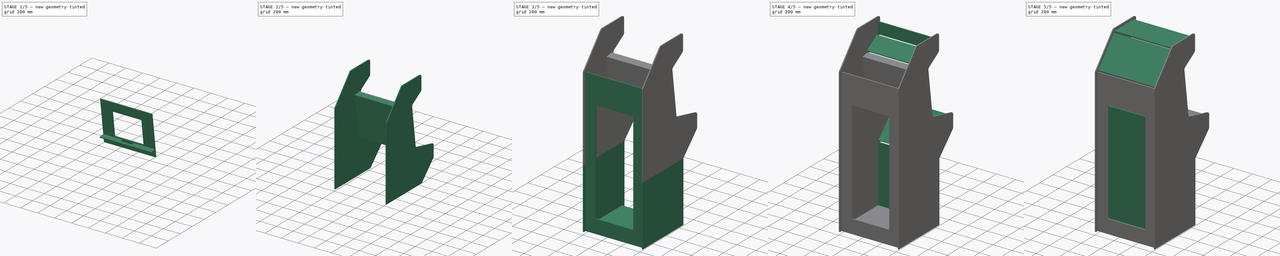
[diagram: build sequence overview — one tinted view per stage of 5, left to right]
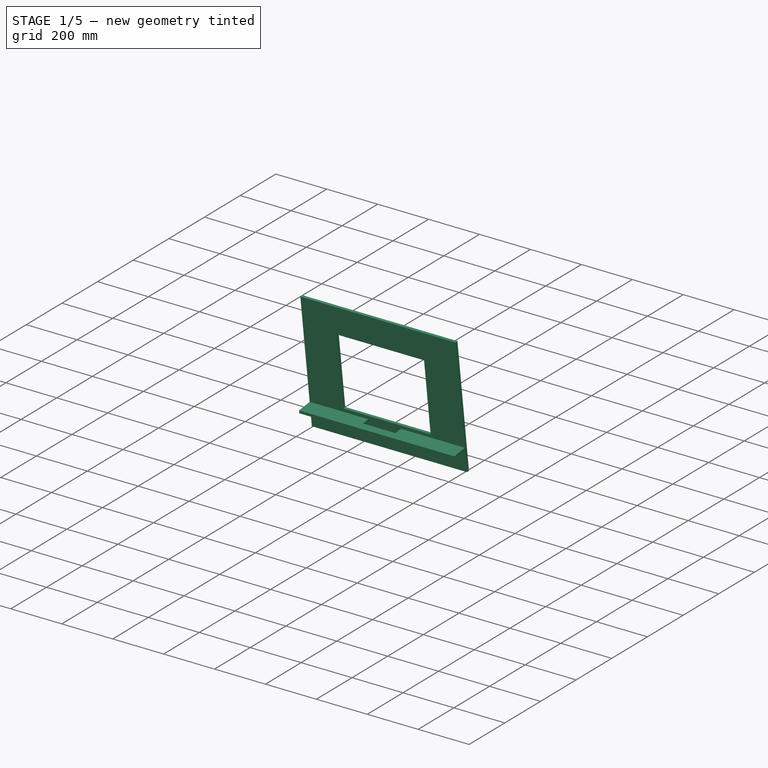
[diagram: stage 1 of 5 — iso view after this stage's code; geometry added in this stage tinted green]
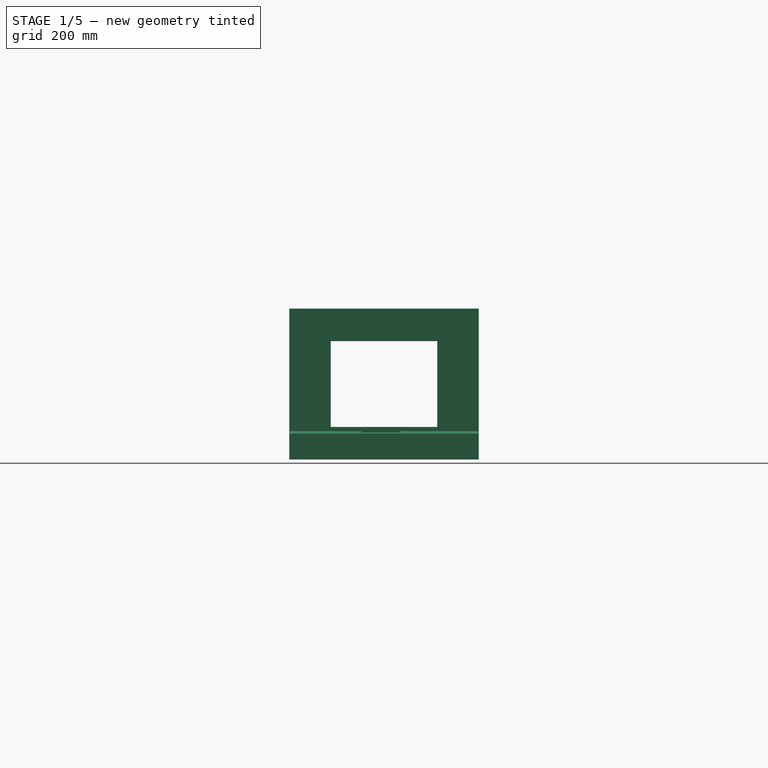
[diagram: stage 1 of 5 — front view after this stage's code; geometry added in this stage tinted green]
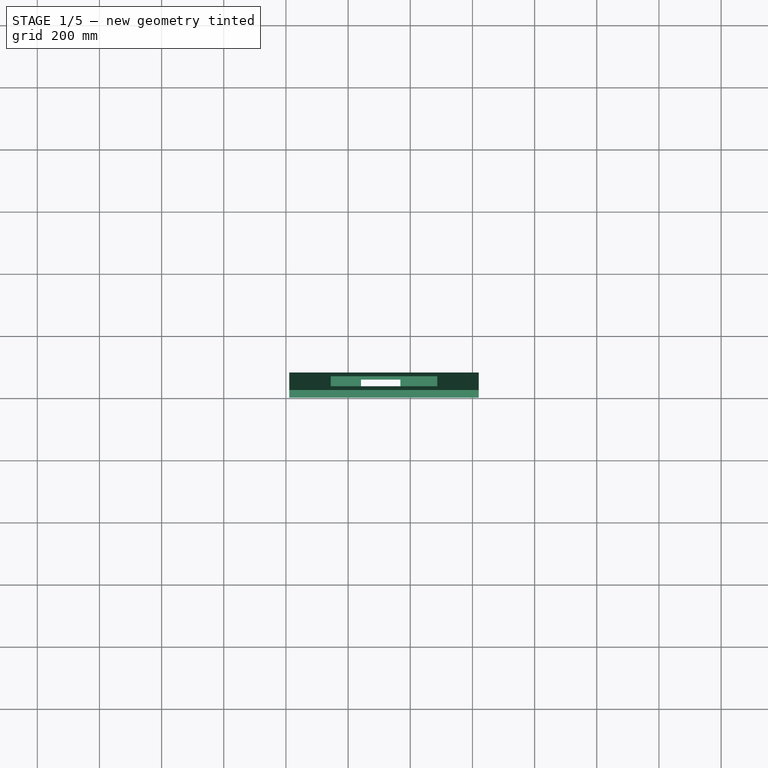
[diagram: stage 1 of 5 — top view after this stage's code; geometry added in this stage tinted green]
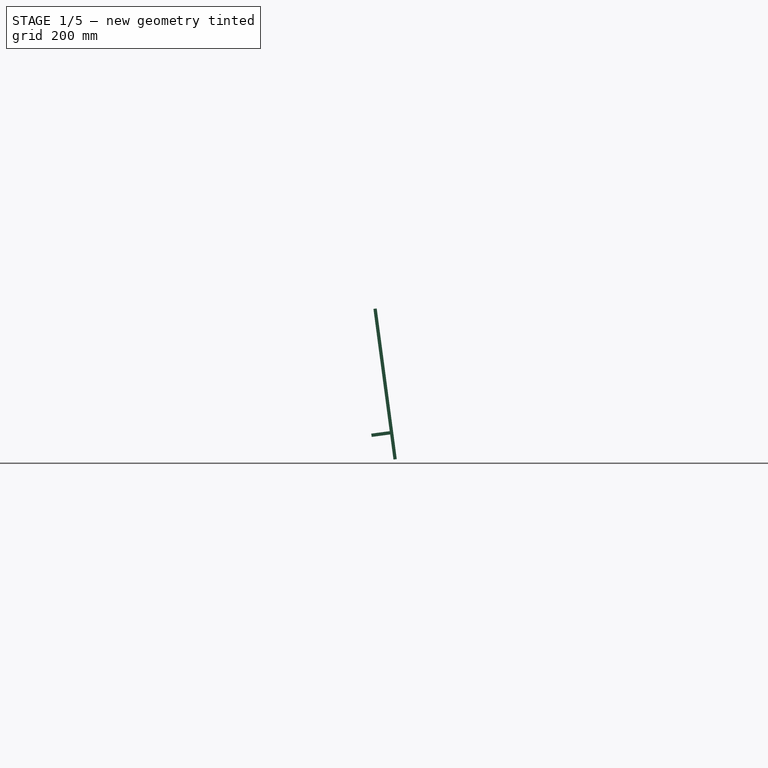
[diagram: stage 1 of 5 — right view after this stage's code; geometry added in this stage tinted green]
FCSTD DOCUMENT  (FreeCAD 0.16RUnknown)
Label: PressFitArcade
License: All rights reserved
LicenseURL: http://en.wikipedia.org/wiki/All_rights_reserved
objects: Part::Box×19, Part::Feature×18, Part::Cut×4, Sketcher::SketchObject×3, PartDesign::Pad×3, App::DocumentObjectGroup×3, Spreadsheet::Sheet×2, PartDesign::Fillet×2, Part::FeaturePython×1, Part::Cylinder×1
note: 54 computed .brp shape members not serialized (recipe doc carries the construction recipe); baked Part::Feature solids carry a one-line shape summary decoded from their .brp

FEATURE [Sketcher::SketchObject] Sketch003
  Placement = pos=(10.668,496.226,1065.7) rot=(1,0,0;1.70325rad)
  expr: Constraints[10] = Spreadsheet.side_g
  expr: Constraints[9] = Spreadsheet.width
  sketch-geometry (4):
    g0: LineSegment StartX=0 StartY=0 StartZ=0 EndX=609.6 EndY=0 EndZ=0
    g1: LineSegment StartX=609.6 StartY=0 StartZ=0 EndX=609.6 EndY=488.95 EndZ=0
    g2: LineSegment StartX=609.6 StartY=488.95 StartZ=0 EndX=0 EndY=488.95 EndZ=0
    g3: LineSegment StartX=0 StartY=488.95 StartZ=0 EndX=0 EndY=0 EndZ=0
  constraints (11):
    c: Coincident(g0,g1)
    c: Coincident(g1,g2)
    c: Coincident(g2,g3)
    c: Coincident(g3,g0)
    c: Horizontal(g0)
    c: Horizontal(g2)
    c: Vertical(g1)
    c: Vertical(g3)
    c: Coincident(g0,g-1)
    c: DistanceX(g2,g2) = 609.6
    c: DistanceY(g1,g1) = 488.95
FEATURE [PartDesign::Pad] Pad003
  Length = 10.668
  Length2 = 100
  Placement = pos=(10.668,496.226,1065.7) rot=(1,0,0;1.70325rad)
  Reversed = true
  Sketch = -> Sketch003
  Type = 0
  expr: Length = Spreadsheet.thickness
FEATURE [Sketcher::SketchObject] Sketch
  Placement = pos=(144.018,482.389,1169.56) rot=(1,0,0;1.70325rad)
  sketch-geometry (4):
    g0: LineSegment StartX=0 StartY=0 StartZ=0 EndX=342.9 EndY=0 EndZ=0
    g1: LineSegment StartX=342.9 StartY=0 StartZ=0 EndX=342.9 EndY=279.4 EndZ=0
    g2: LineSegment StartX=342.9 StartY=279.4 StartZ=0 EndX=0 EndY=279.4 EndZ=0
    g3: LineSegment StartX=0 StartY=279.4 StartZ=0 EndX=0 EndY=0 EndZ=0
  constraints (11):
    c: Coincident(g0,g1)
    c: Coincident(g1,g2)
    c: Coincident(g2,g3)
    c: Coincident(g3,g0)
    c: Horizontal(g0)
    c: Horizontal(g2)
    c: Vertical(g1)
    c: Vertical(g3)
    c: Coincident(g0,g-1)
    c: DistanceX(g2,g2) = 342.9
    c: DistanceY(g1,g1) = 279.4
FEATURE [PartDesign::Pad] Pad
  Length = 10.668
  Length2 = 100
  Placement = pos=(144.018,482.389,1169.56) rot=(1,0,0;1.70325rad)
  Reversed = true
  Sketch = -> Sketch
  Type = 0
  expr: Length = Spreadsheet.thickness
FEATURE [Part::Cut] Cut002  label="Screen"
  Base = -> Pad003
  Placement = pos=(0,-23.0429,-3.07136) rot=(0,0,1;0rad)
  Tool = -> Pad
FEATURE [Part::Box] Box018  label="ScreenSupport001"
  Height = 60
  Length = 609.6
  Placement = pos=(10.668,462.432,1143.32) rot=(1,0,0;1.70325rad)
  Width = 10.668
  expr: Length = Spreadsheet.width
  expr: Width = Spreadsheet.thickness
FEATURE [Spreadsheet::Sheet] Spreadsheet001
  cells = A1=Variable; B1=inches; C1=mm; F1=Side; G1=inches; H1=mm; A2=height; B2=48; C2(height)==B2 * 25.4; F2=A; G2=24; H2(side_a)==G2 * 25.4; I2==H2 / 2 / 76.2; A3=length; B3=36; C3(length)==B3 * 25.4; F3=B; G3=60; H3(side_b)==G3 * 25.4; I3==int(H3 / 3 / 76.2); A4=width; B4=24; C4(width)==B4 * 25.4; F4=C; G4=16; H4(side_c)==G4 * 25.4; A5=thickness; B5=0.42; C5(thickness)==B5 * 25.4; F5=D; G5=13.25; H5(side_d)==G5 * 25.4; A6=back_height; B6=36; C6(back_height)==B6 * 25.4; F6=E; G6=7; H6(side_e)==G6 * 25.4; A7=top_width; B7=24; C7(top_width)==B7 * 25.4; F7=F; G7=7.5; H7(side_f)==G7 * 25.4; F8=G; G8=19.25; H8(side_g)==G8 * 25.4; F9=H; G9=12.5; H9(side_h)==G9 * 25.4; F10=I; G10=6; H10(side_i)==G10 * 25.4; F11=J; G11=11.5; H11(side_j)==G11 * 25.4; F12=K; G12=25; H12(side_k)==G12 * 25.4
FEATURE [Part::Box] Box019  label="ScreenSupportHole"
  Height = 30
  Length = 127
  Placement = pos=(241.3,462.432,1143.32) rot=(1,0,0;1.70325rad)
  Width = 10.668
  expr: Width = Spreadsheet.thickness
FEATURE [Part::Cut] Cut003  label="ScreenBottom"
  Base = -> Box018
  Tool = -> Box019
FEATURE [App::DocumentObjectGroup] Group002  label="ScreenSupport"
  Group = -> [Box011,Cut003,Cut002]
FEATURE [Part::Feature] SideK001_tab
  shape: bbox 10.67 x 609.6 x 635 mm, 50 faces (baked)
FEATURE [Part::Feature] SideK002_tab
  shape: bbox 10.67 x 609.6 x 635 mm, 50 faces (baked)
FEATURE [Part::Feature] Fillet_tab
  shape: bbox 10.67 x 815.8 x 1195 mm, 100 faces (baked)
FEATURE [Part::Feature] Fillet001_tab
  shape: bbox 10.67 x 815.8 x 1195 mm, 100 faces (baked)
FEATURE [Part::Feature] SideC_tab
  shape: bbox 630.9 x 242.3 x 274.6 mm, 38 faces (baked)
FEATURE [Part::Feature] SideD_tab
  shape: bbox 630.9 x 292.1 x 10.67 mm, 38 faces (baked)
FEATURE [Part::Feature] SideE_tab
  shape: bbox 630.9 x 10.67 x 120.7 mm, 22 faces (baked)
FEATURE [Part::Feature] SideF_tab
  shape: bbox 630.9 x 156.8 x 102.6 mm, 22 faces (baked)
FEATURE [Part::Feature] SideH_tab
  shape: bbox 630.9 x 299.1 x 80.32 mm, 38 faces (baked)
FEATURE [Part::Feature] SideI_tab
  shape: bbox 630.9 x 10.67 x 108 mm, 22 faces (baked)
FEATURE [Part::Feature] SideJ_tab
  shape: bbox 630.9 x 204.8 x 205.4 mm, 38 faces (baked)
FEATURE [Part::Feature] SideK_tab
  shape: bbox 630.9 x 10.67 x 635 mm, 78 faces (baked)
FEATURE [Part::Feature] SideA_tab
  shape: bbox 630.9 x 558.8 x 10.67 mm, 102 faces (baked)
FEATURE [Part::Feature] SideB_tab
  shape: bbox 630.9 x 10.67 x 1511 mm, 102 faces (baked)
FEATURE [Part::Feature] CenterSupport_tab
  shape: bbox 630.9 x 548.1 x 10.67 mm, 79 faces (baked)
FEATURE [Part::Feature] ScreenBack_tab
  shape: bbox 630.9 x 75.15 x 486.1 mm, 62 faces (baked)
FEATURE [Part::Feature] Screen_tab
  shape: bbox 630.9 x 75.15 x 486.1 mm, 66 faces (baked)
FEATURE [Part::Feature] ScreenBottom_tab
  shape: bbox 609.6 x 82.04 x 21.32 mm, 42 faces (baked)
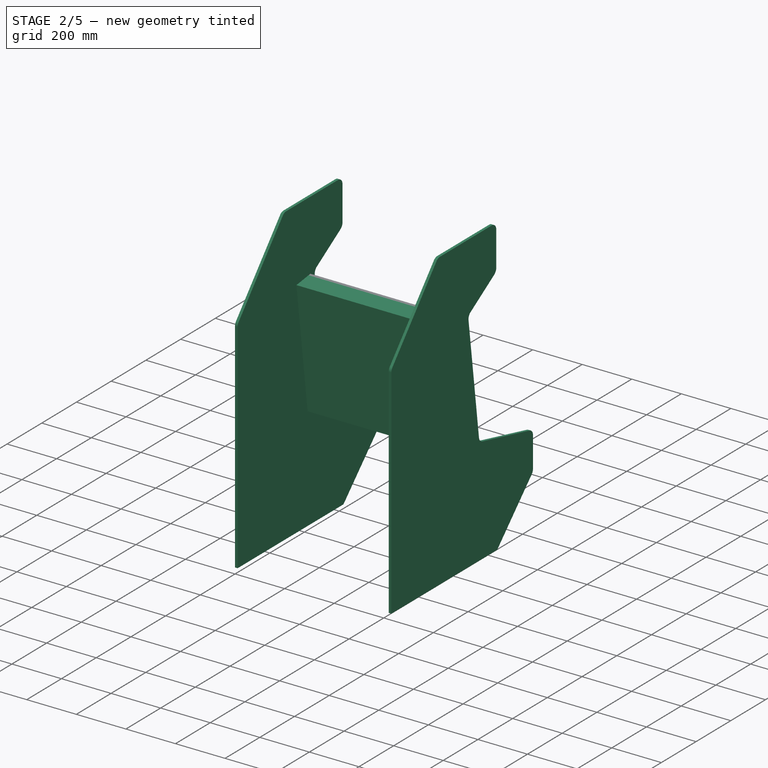
[diagram: stage 2 of 5 — iso view after this stage's code; geometry added in this stage tinted green]
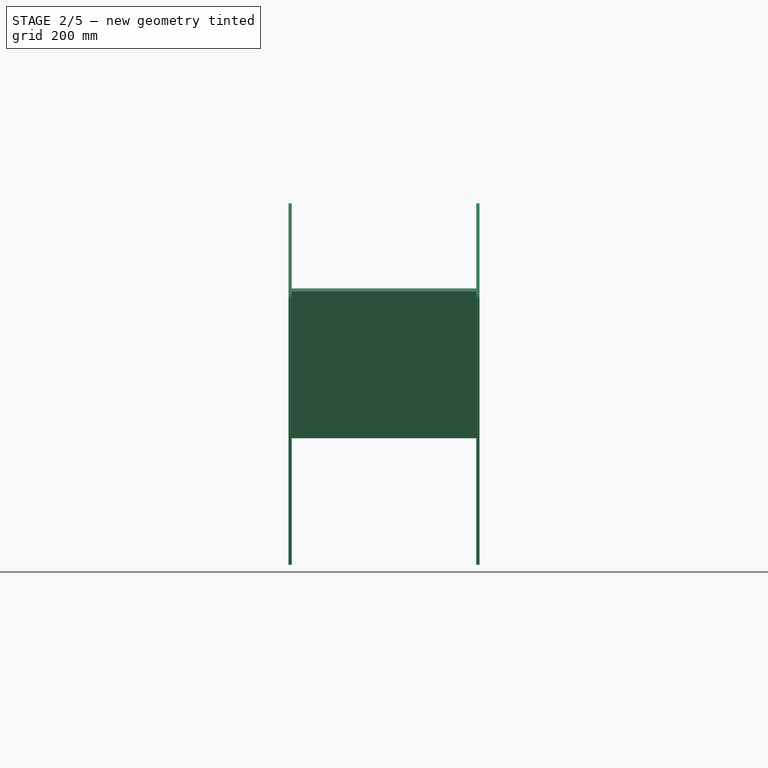
[diagram: stage 2 of 5 — front view after this stage's code; geometry added in this stage tinted green]
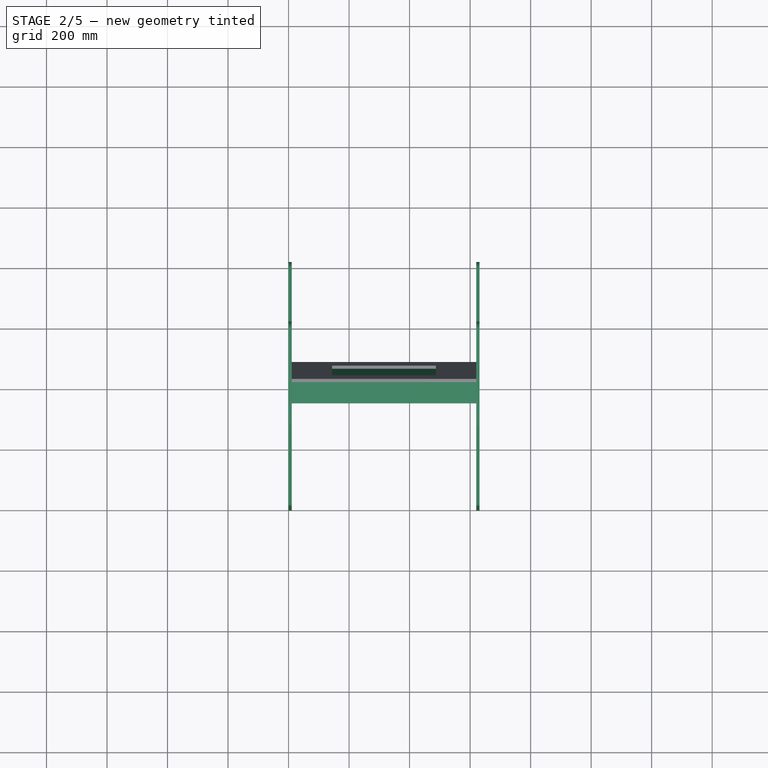
[diagram: stage 2 of 5 — top view after this stage's code; geometry added in this stage tinted green]
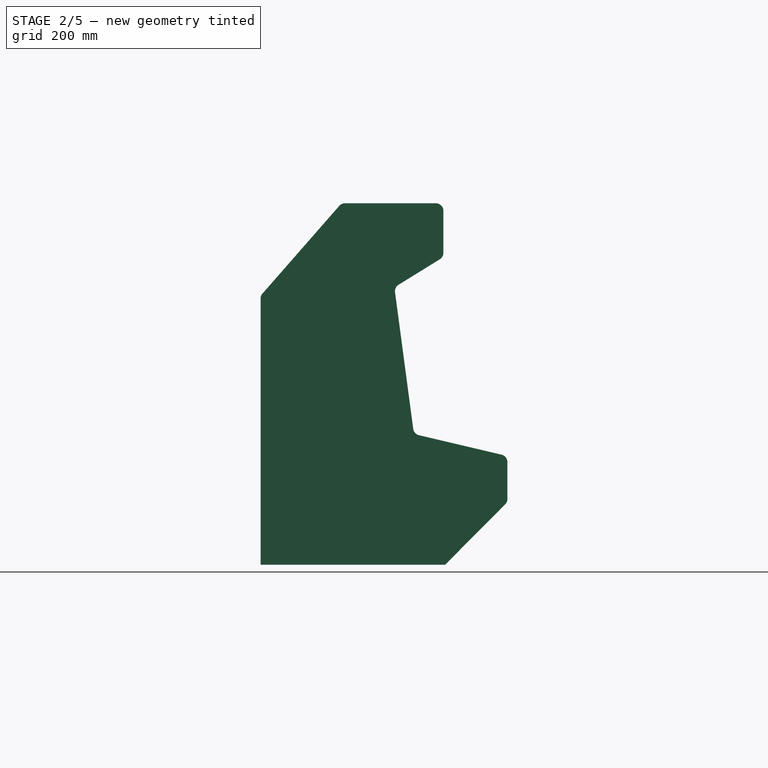
[diagram: stage 2 of 5 — right view after this stage's code; geometry added in this stage tinted green]
FEATURE [Spreadsheet::Sheet] Spreadsheet
  cells = A1=Variable; B1=inches; C1=mm; F1=Side; G1=inches; H1=mm; A2=height; B2=48; C2(height)==B2 * 25.4; F2=A; G2=24; H2(side_a)==G2 * 25.4; I2==H2 / 2 / 76.2; A3=length; B3=36; C3(length)==B3 * 25.4; F3=B; G3=60; H3(side_b)==G3 * 25.4; I3==int(H3 / 3 / 76.2); A4=width; B4=24; C4(width)==B4 * 25.4; F4=C; G4=16; H4(side_c)==G4 * 25.4; A5=thickness; B5=0.42; C5(thickness)==B5 * 25.4; F5=D; G5=13.25; H5(side_d)==G5 * 25.4; A6=back_height; B6=36; C6(back_height)==B6 * 25.4; F6=E; G6=7; H6(side_e)==G6 * 25.4; A7=top_width; B7=24; C7(top_width)==B7 * 25.4; F7=F; G7=7.5; H7(side_f)==G7 * 25.4; F8=G; G8=19.25; H8(side_g)==G8 * 25.4; F9=H; G9=12.5; H9(side_h)==G9 * 25.4; F10=I; G10=6; H10(side_i)==G10 * 25.4; F11=J; G11=11.5; H11(side_j)==G11 * 25.4; F12=K; G12=25; H12(side_k)==G12 * 25.4
FEATURE [Sketcher::SketchObject] Sketch002
  Placement = pos=(0,0,0) rot=(0.57735,0.57735,0.57735;2.0944rad)
  expr: Constraints[18] = Spreadsheet.side_f
  expr: Constraints[11] = Spreadsheet.side_e
  expr: Constraints[21] = Spreadsheet.side_j
  expr: Constraints[20] = Spreadsheet.side_h
  expr: Constraints[17] = Spreadsheet.side_c
  expr: Constraints[19] = Spreadsheet.side_g
  expr: Constraints[15] = Spreadsheet.side_d
  sketch-geometry (10):
    g0: LineSegment StartX=6.3e-11 StartY=635 StartZ=0 EndX=6.3e-11 EndY=1524 EndZ=0
    g1: LineSegment StartX=6.3e-11 StartY=1524 StartZ=0 EndX=267.697 EndY=1829.78 EndZ=0
    g2: LineSegment StartX=267.697 StartY=1829.78 StartZ=0 EndX=604.247 EndY=1829.78 EndZ=0
    g3: LineSegment StartX=604.247 StartY=1829.78 StartZ=0 EndX=604.247 EndY=1651.98 EndZ=0
    g4: LineSegment StartX=604.247 StartY=1651.98 StartZ=0 EndX=442.227 EndY=1551.78 EndZ=0
    g5: LineSegment StartX=442.227 StartY=1551.78 StartZ=0 EndX=506.8 EndY=1067.11 EndZ=0
    g6: LineSegment StartX=506.8 StartY=1067.11 StartZ=0 EndX=815.83 EndY=994.261 EndZ=0
    g7: LineSegment StartX=815.83 StartY=994.261 StartZ=0 EndX=815.83 EndY=841.861 EndZ=0
    g8: LineSegment StartX=815.83 StartY=841.861 StartZ=0 EndX=609.6 EndY=635 EndZ=0
    g9: LineSegment StartX=609.6 StartY=635 StartZ=0 EndX=6.3e-11 EndY=635 EndZ=0
  constraints (26):
    c: Vertical(g0)
    c: Coincident(g0,g1)
    c: Coincident(g2,g3)
    c: Coincident(g4,g5)
    c: Coincident(g5,g6)
    c: Coincident(g6,g7)
    c: Vertical(g7)
    c: Coincident(g7,g8)
    c: Coincident(g9,g0)
    c: Horizontal(g9)
    c: DistanceY(g7,g6) = 152.4
    c: DistanceY(g3,g2) = 177.8
    c: Vertical(g3)
    c: Coincident(g2,g1)
    c: Horizontal(g2)
    c: DistanceX(g2,g2) = 336.55
    c: Coincident(g3,g4)
    c: Distance(g1) = 406.4
    c: Distance(g4) = 190.5
    c: Distance(g5) = 488.95
    c: Distance(g6) = 317.5
    c: Distance(g8) = 292.1
    c: Angle(g0,g1) = 2.4225
    c: Angle(g5,g4) = 1.99221
    c: Angle(g3,g4) = 2.12466
    c: Coincident(g8,g9)
FEATURE [PartDesign::Pad] Pad002
  Length = 10.668
  Length2 = 100
  Placement = pos=(0,0,0) rot=(0.57735,0.57735,0.57735;2.0944rad)
  Sketch = -> Sketch002
  Type = 0
  expr: Length = Spreadsheet.thickness
FEATURE [Part::FeaturePython] Clone003  label="Clone of Pad002"  # Draft clone (typed FeaturePython)
  Objects = -> [Pad002]
  Placement = pos=(620.268,0,0) rot=(0.57735,0.57735,0.57735;2.0944rad)
  Scale = (1,1,1)
FEATURE [Part::Box] Box011  label="ScreenBack"
  Height = 488.95
  Length = 609.6
  Placement = pos=(10.668,403.133,1053.3) rot=(1,0,0;0.132452rad)
  Width = 10.668
  expr: Length = Spreadsheet.width
  expr: Width = Spreadsheet.thickness
  expr: Height = Spreadsheet.side_g
FEATURE [App::DocumentObjectGroup] Group  label="Panels"
  Group = -> [Box001,Box002,Box003,Box004,Box005,Box006,Box007,Box008,Box009,Cut001]
FEATURE [PartDesign::Fillet] Fillet
  Base = -> Clone003 [Edge23,Edge20,Edge17,Edge14,Edge11,Edge8,Edge5,Edge2]
  Placement = pos=(620.268,0,0) rot=(0.57735,0.57735,0.57735;2.0944rad)
  Radius = 25.4
FEATURE [PartDesign::Fillet] Fillet001
  Base = -> Pad002 [Edge23,Edge20,Edge17,Edge2,Edge14,Edge11,Edge8,Edge5]
  Placement = pos=(0,0,0) rot=(0.57735,0.57735,0.57735;2.0944rad)
  Radius = 25.4
FEATURE [App::DocumentObjectGroup] Group001  label="Sides"
  Group = -> [Clone003,Pad002,Box015,Box016,Fillet,Fillet001]
FEATURE [Part::Box] Box017  label="ScreenAlignment"
  Height = 488.95
  Length = 609.6
  Placement = pos=(10.668,413.709,1054.7) rot=(1,0,0;0.132453rad)
  Width = 60
  expr: Height = Spreadsheet.side_g
  expr: Length = Spreadsheet.width
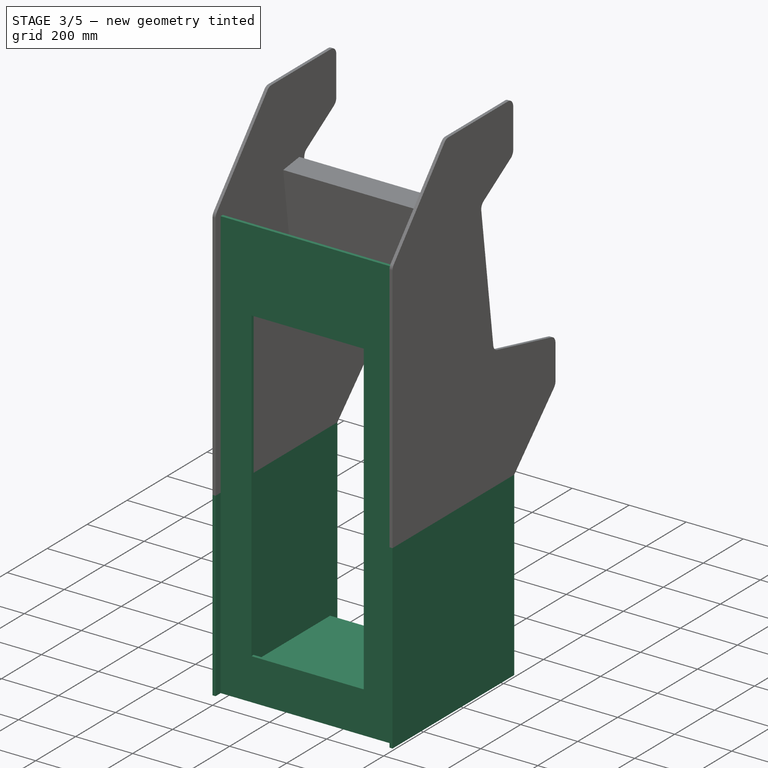
[diagram: stage 3 of 5 — iso view after this stage's code; geometry added in this stage tinted green]
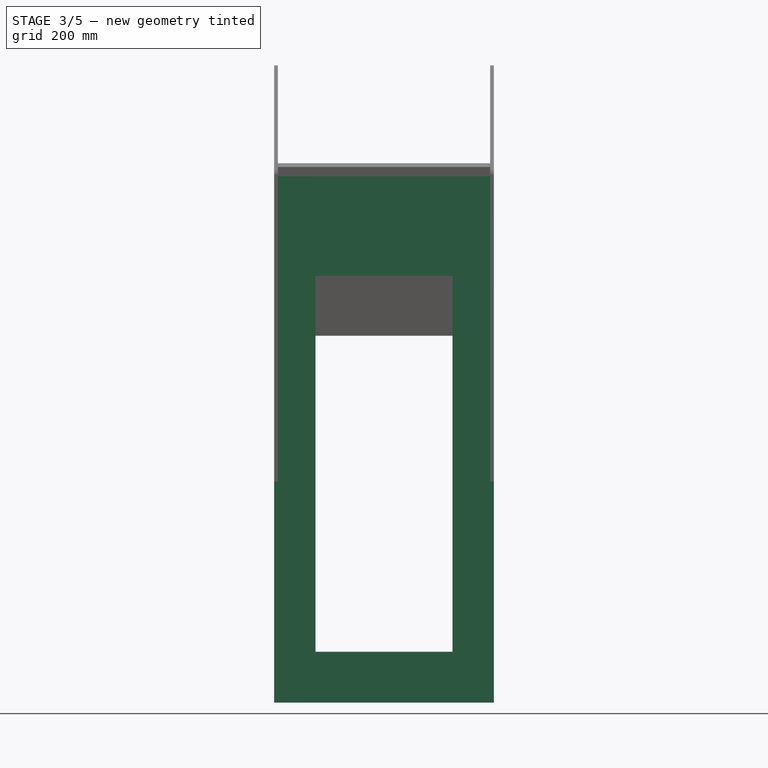
[diagram: stage 3 of 5 — front view after this stage's code; geometry added in this stage tinted green]
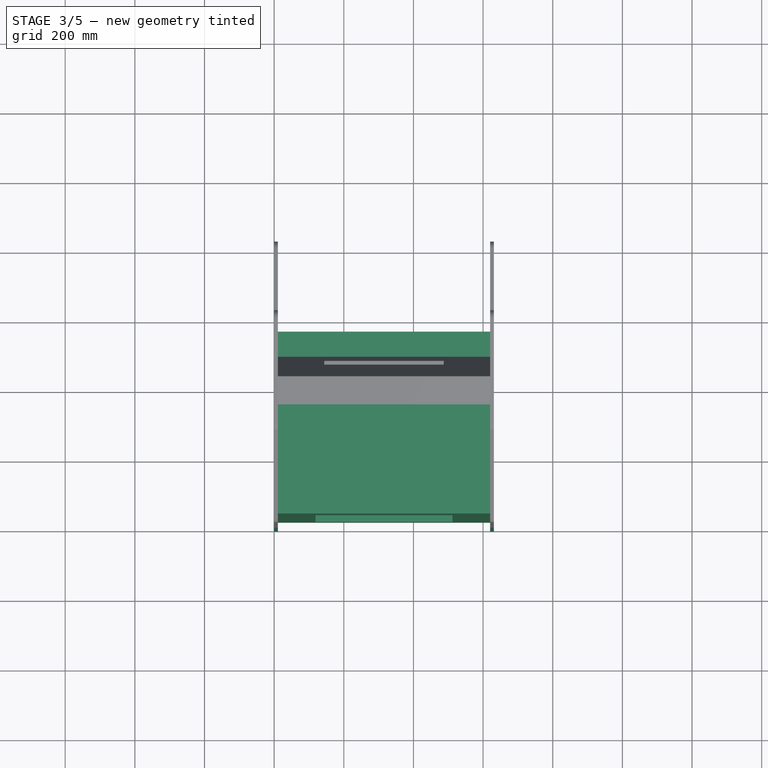
[diagram: stage 3 of 5 — top view after this stage's code; geometry added in this stage tinted green]
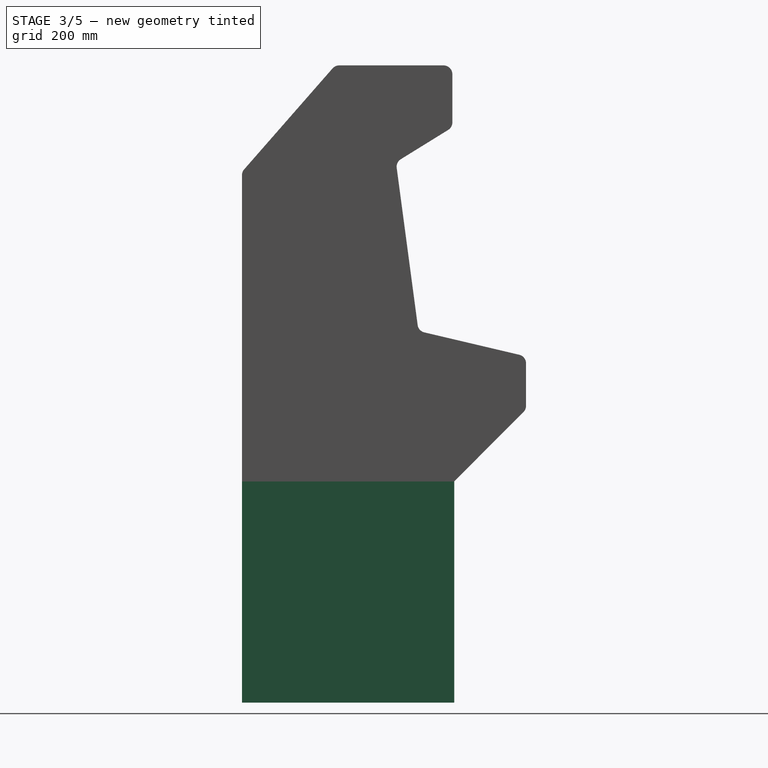
[diagram: stage 3 of 5 — right view after this stage's code; geometry added in this stage tinted green]
FEATURE [Part::Box] Box  label="SideBBase"
  Height = 1511.3
  Length = 609.6
  Placement = pos=(10.668,25.4,0) rot=(0,0,1;0rad)
  Width = 10.668
  expr: Length = Spreadsheet.width
  expr: Width = Spreadsheet.thickness
  expr: Height = Spreadsheet.side_b - 25.4 / 2
FEATURE [Part::Box] Box009  label="SideA"
  Height = 537.464
  Length = 609.6
  Placement = pos=(10.668,36.068,36.068) rot=(-1,0,0;1.5708rad)
  Width = 10.668
  expr: Length = Spreadsheet.width
  expr: Width = Spreadsheet.thickness
  expr: Height = Spreadsheet.side_a - Spreadsheet.thickness * 2 - 25.4 * 2
FEATURE [Part::Box] Box014  label="DoorCutout"
  Height = 1079.5
  Length = 393.7
  Placement = pos=(118.618,25.4,146.05) rot=(0,0,1;0rad)
  Width = 10.668
  expr: Width = Spreadsheet.thickness
FEATURE [Part::Cut] Cut001  label="SideB"
  Base = -> Box
  Tool = -> Box014
FEATURE [Part::Box] Box015  label="SideK001"
  Height = 635
  Length = 609.6
  Placement = pos=(630.936,6.3e-11,0) rot=(0,0,1;1.5708rad)
  Width = 10.668
  expr: Length = Spreadsheet.width
  expr: Width = Spreadsheet.thickness
  expr: Height = Spreadsheet.side_k
FEATURE [Part::Box] Box016  label="SideK002"
  Height = 635
  Length = 609.6
  Placement = pos=(10.668,6.3e-11,0) rot=(0,0,1;1.5708rad)
  Width = 10.668
  expr: Length = Spreadsheet.width
  expr: Width = Spreadsheet.thickness
  expr: Height = Spreadsheet.side_k
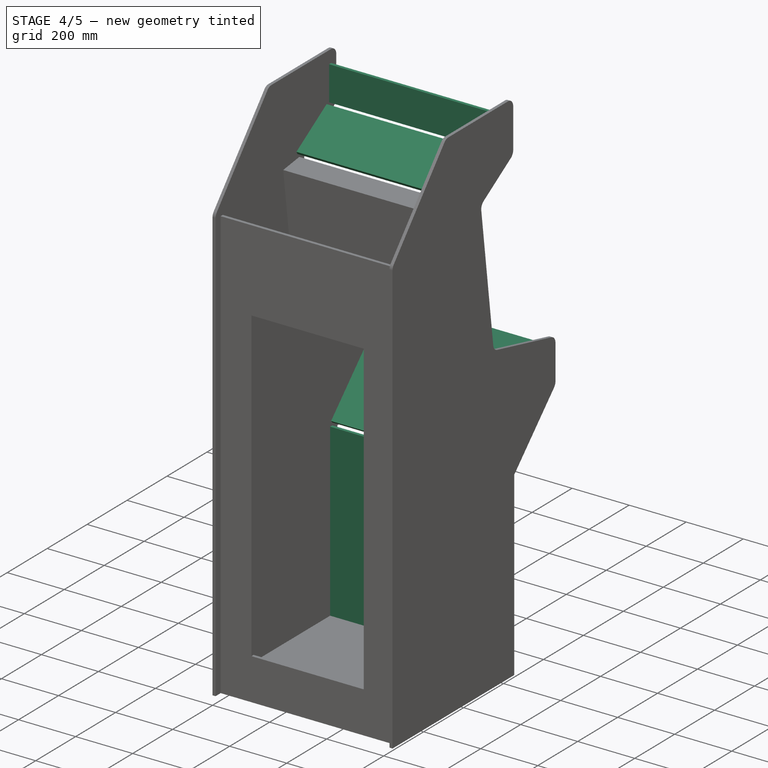
[diagram: stage 4 of 5 — iso view after this stage's code; geometry added in this stage tinted green]
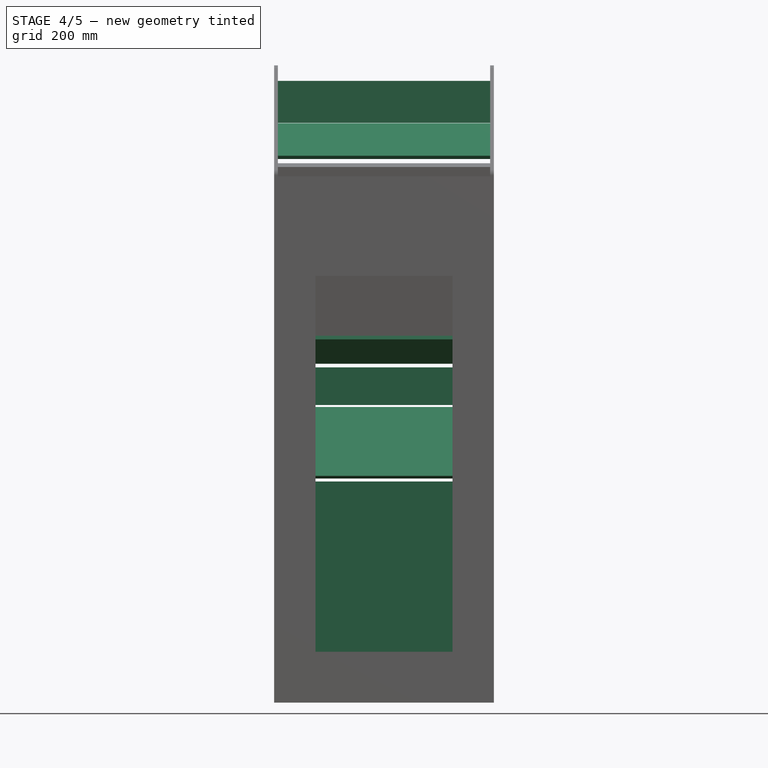
[diagram: stage 4 of 5 — front view after this stage's code; geometry added in this stage tinted green]
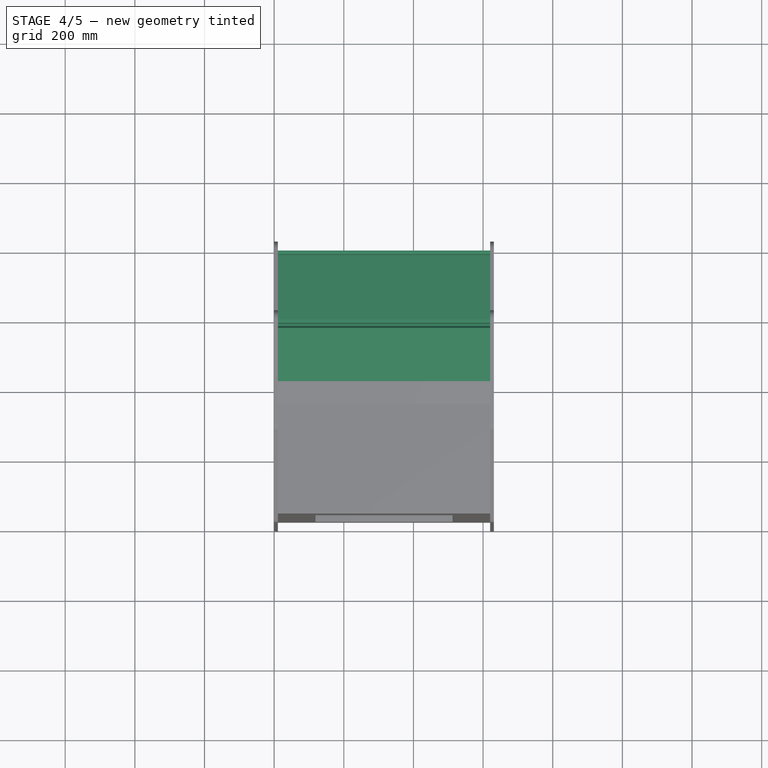
[diagram: stage 4 of 5 — top view after this stage's code; geometry added in this stage tinted green]
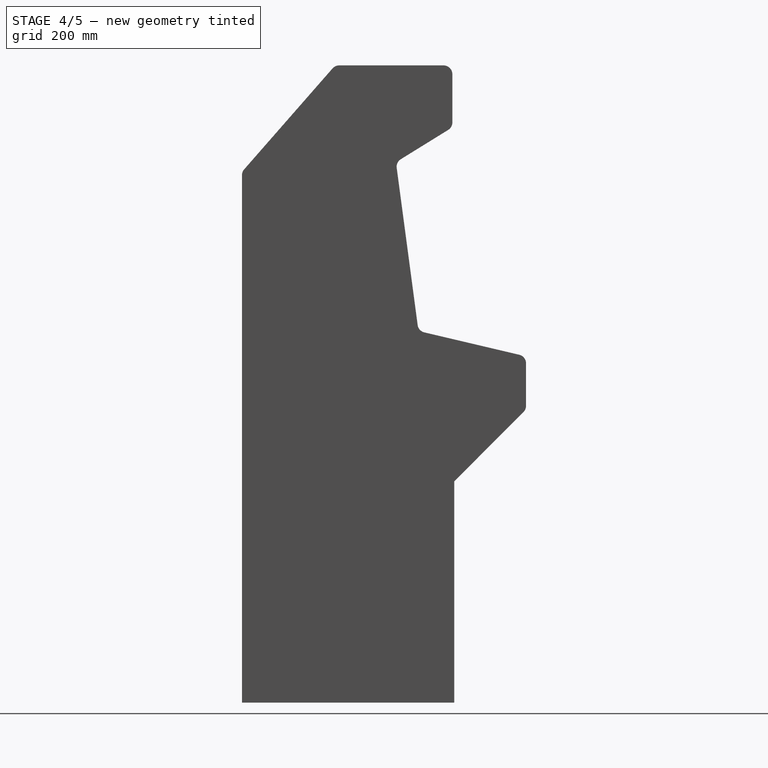
[diagram: stage 4 of 5 — right view after this stage's code; geometry added in this stage tinted green]
FEATURE [Part::Box] Box003  label="SideE"
  Height = 120.65
  Length = 609.6
  Placement = pos=(10.668,568.179,1664.68) rot=(0,0,1;0rad)
  Width = 10.668
  expr: Length = Spreadsheet.width
  expr: Width = Spreadsheet.thickness
  expr: Height = Spreadsheet.side_e - 25.4 * 2.25
FEATURE [Part::Box] Box004  label="SideF"
  Height = 177.8
  Length = 609.6
  Placement = pos=(10.668,404.707,1570.21) rot=(-1,0,0;1.01693rad)
  Width = 10.668
  expr: Width = Spreadsheet.thickness
  expr: Length = Spreadsheet.width
  expr: Height = Spreadsheet.side_f - 25.4 / 2
FEATURE [Part::Box] Box005  label="SideH"
  Height = 304.8
  Length = 609.6
  Placement = pos=(10.668,775.379,973.053) rot=(1,0,0;1.33929rad)
  Width = 10.668
  expr: Length = Spreadsheet.width
  expr: Width = Spreadsheet.thickness
  expr: Height = Spreadsheet.side_h - 25.4 / 2
FEATURE [Part::Box] Box006  label="SideI"
  Height = 107.95
  Length = 609.6
  Placement = pos=(10.668,779.762,854.561) rot=(0,0,1;0rad)
  Width = 10.668
  expr: Length = Spreadsheet.width
  expr: Width = Spreadsheet.thickness
  expr: Height = Spreadsheet.side_i - 25.4 * 1.75
FEATURE [Part::Box] Box007  label="SideJ"
  Height = 279.4
  Length = 609.6
  Placement = pos=(10.668,578.218,650.952) rot=(-1,0,0;0.783869rad)
  Width = 10.668
  expr: Length = Spreadsheet.width
  expr: Width = Spreadsheet.thickness
  expr: Height = Spreadsheet.side_j - 25.4 / 2
FEATURE [Part::Box] Box008  label="SideK"
  Height = 635
  Length = 609.6
  Placement = pos=(10.668,573.532,0) rot=(0,0,1;0rad)
  Width = 10.668
  expr: Length = Spreadsheet.width
  expr: Width = Spreadsheet.thickness
  expr: Height = Spreadsheet.side_k
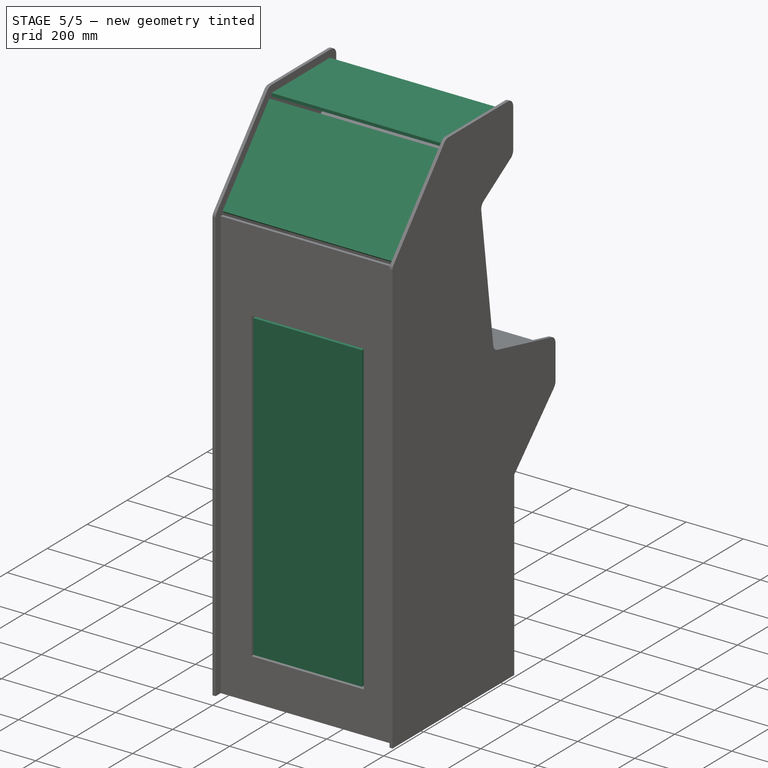
[diagram: stage 5 of 5 — iso view after this stage's code; geometry added in this stage tinted green]
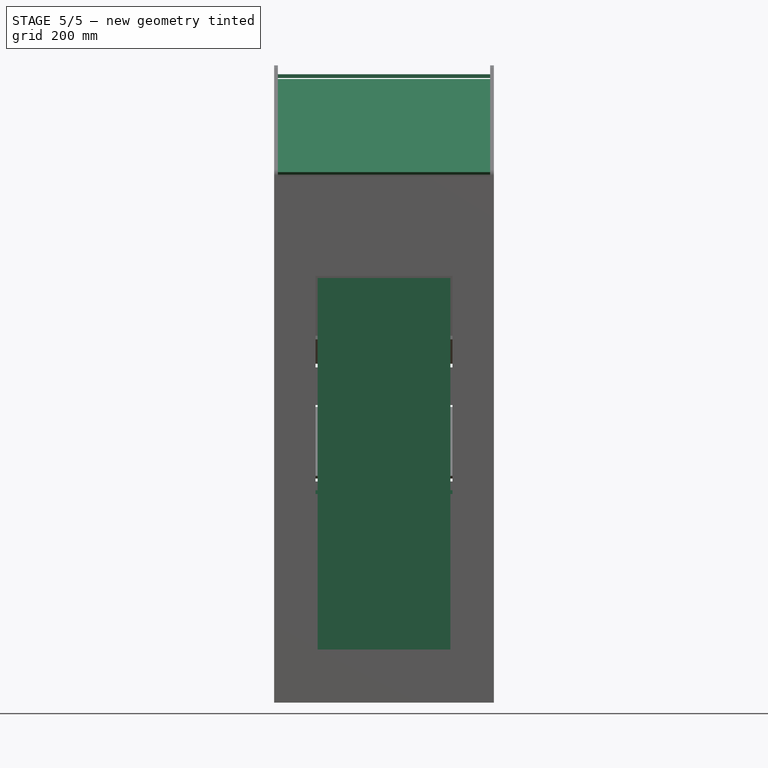
[diagram: stage 5 of 5 — front view after this stage's code; geometry added in this stage tinted green]
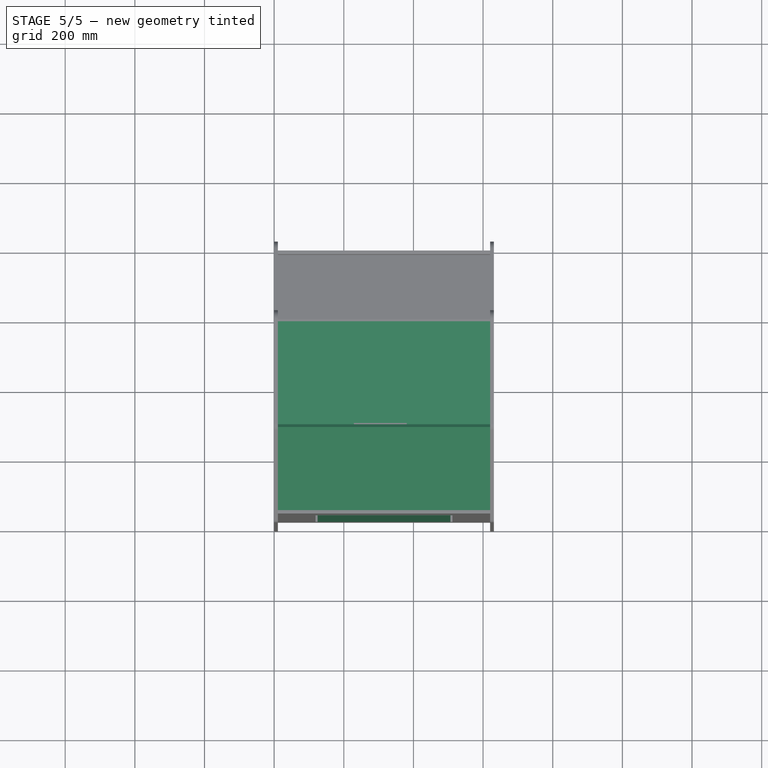
[diagram: stage 5 of 5 — top view after this stage's code; geometry added in this stage tinted green]
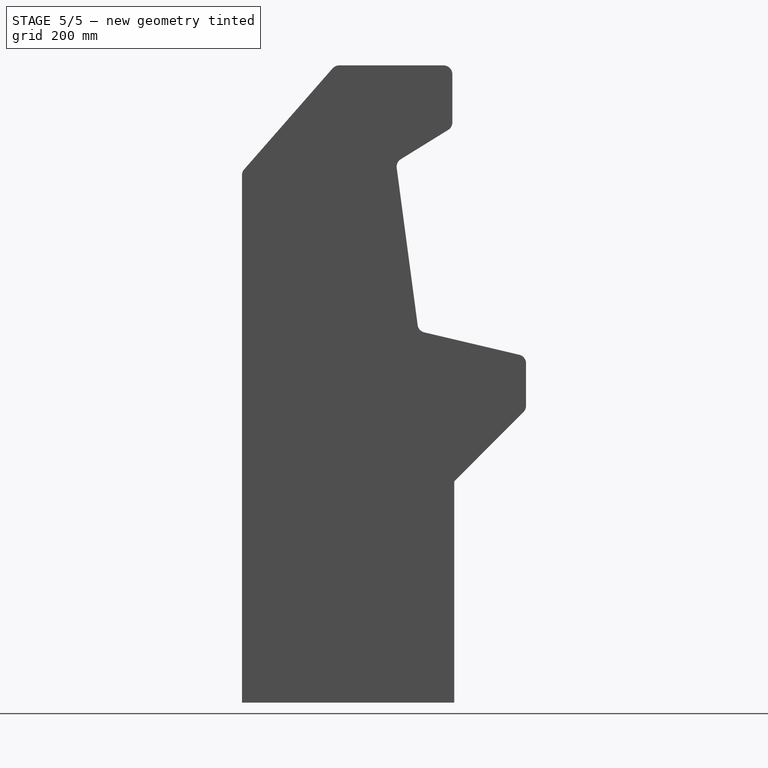
[diagram: stage 5 of 5 — right view after this stage's code; geometry added in this stage tinted green]
FEATURE [Part::Box] Box001  label="SideC"
  Height = 355.6
  Length = 609.6
  Placement = pos=(10.668,35.0654,1523.28) rot=(-1,0,0;0.719093rad)
  Width = 10.668
  expr: Length = Spreadsheet.width
  expr: Width = Spreadsheet.thickness
  expr: Height = Spreadsheet.side_c - 25.4 * 2
FEATURE [Part::Box] Box002  label="SideD"
  Height = 292.1
  Length = 609.6
  Placement = pos=(10.668,280.397,1804.38) rot=(-1,0,0;1.5708rad)
  Width = 10.668
  expr: Length = Spreadsheet.width
  expr: Width = Spreadsheet.thickness
  expr: Height = Spreadsheet.side_d - 25.4 * 1.75
FEATURE [Part::Box] Box010  label="SupportBase"
  Height = 537.464
  Length = 609.6
  Placement = pos=(10.668,36.068,609.6) rot=(-1,0,0;1.5708rad)
  Width = 10.668
  expr: Length = Spreadsheet.width
  expr: Width = Spreadsheet.thickness
  expr: Height = Spreadsheet.side_a - Spreadsheet.thickness * 2 - 25.4 * 2
FEATURE [Part::Cylinder] Cylinder  label="CableCutout"
  Angle = 360
  Height = 10.668
  Placement = pos=(304.8,304.8,598.932) rot=(0,0,1;0rad)
  Radius = 76.2
  expr: Height = Spreadsheet.thickness
FEATURE [Part::Cut] Cut  label="CenterSupport"
  Base = -> Box010
  Tool = -> Cylinder
FEATURE [Part::Box] Box013  label="Door"
  Height = 1066.8
  Length = 381
  Placement = pos=(124.968,25.4,152.4) rot=(0,0,1;0rad)
  Width = 10.668
  expr: Width = Spreadsheet.thickness
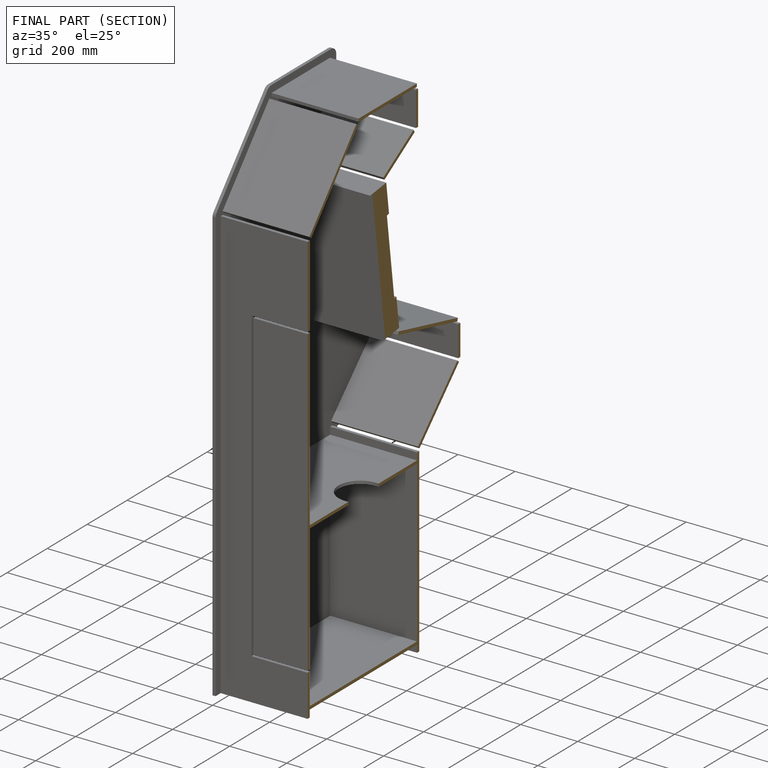
[diagram: finished part — half-section view (interior)]
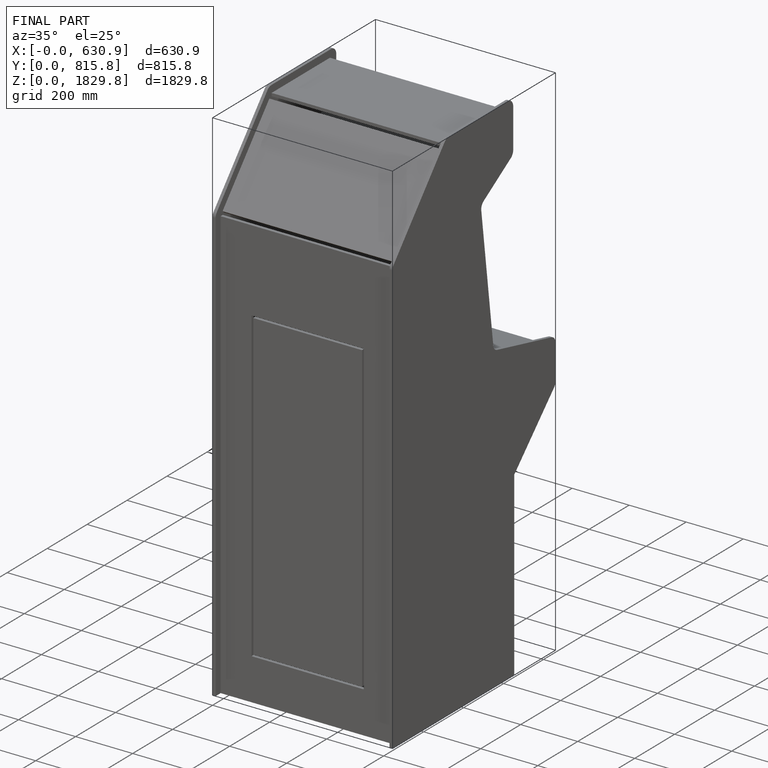
[diagram: finished part — iso view with bounding-box wireframe]
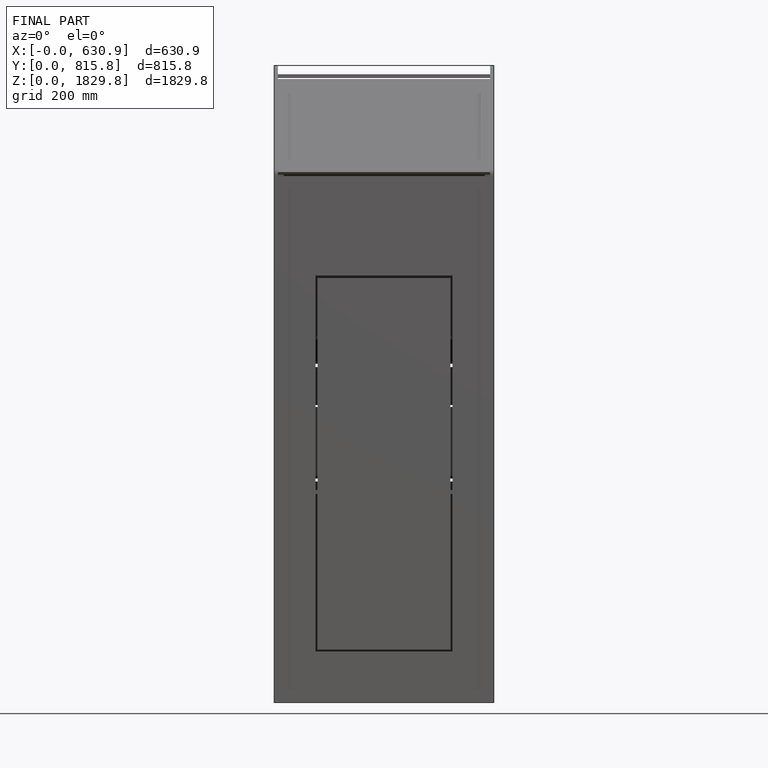
[diagram: finished part — front view with bounding-box wireframe]
